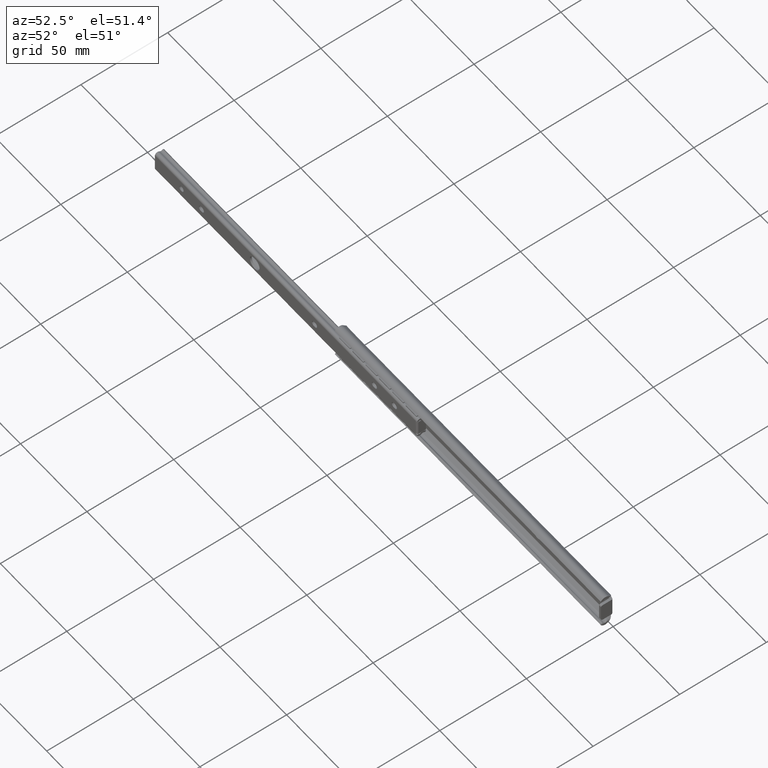
[diagram: clean part render]
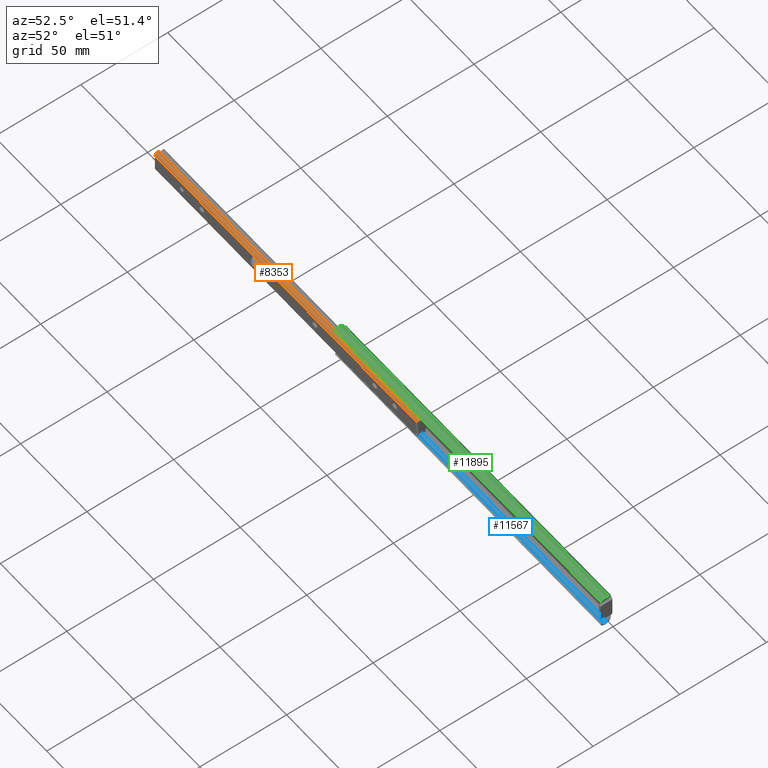
[diagram: same view with three faces highlighted in distinct colors, each labeled with its STEP entity id]
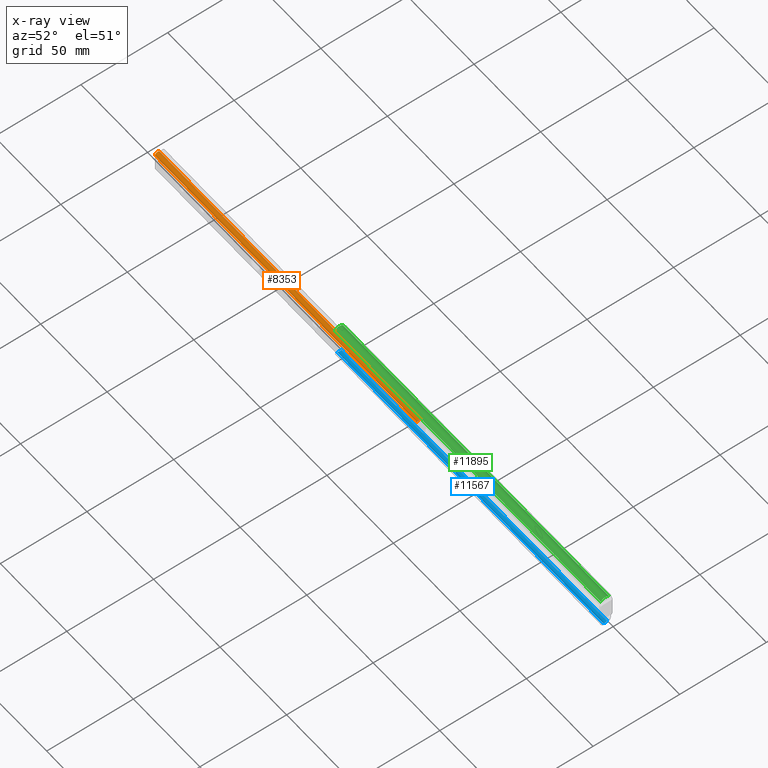
[diagram: x-ray of the same camera — body ghosted, the three highlighted faces saturated]
A machine part, auxiliary view with three faces highlighted in distinct colors.
The next image is the same camera in x-ray (body ghosted, the three faces saturated) — at least one of them is partly hidden behind the body in this view.
Their STEP definitions:

[orange] entity #8353 — the highlighted face is a freeform B-spline surface patch.
#7621=CARTESIAN_POINT('',(63.0,-8.000000000000119,4.641039999999910));
#7622=VERTEX_POINT('',#7621);
#7797=CARTESIAN_POINT('',(-134.0,-5.520770559995830,5.796694574426810));
#7798=VERTEX_POINT('',#7797);
#7931=CARTESIAN_POINT('',(-134.0,-8.000000000000091,4.641039999999900));
#7932=VERTEX_POINT('',#7931);
#7938=CARTESIAN_POINT('',(-134.0,-5.520770559995825,5.796694574426815));
#7939=CARTESIAN_POINT('',(-133.999999999999970,-6.257119220895800,6.414921351414743));
#7940=CARTESIAN_POINT('',(-134.0,-7.128559610447943,6.008712851194377));
#7941=CARTESIAN_POINT('',(-133.999999999999970,-8.000000000000080,5.602504350974015));
#7942=CARTESIAN_POINT('',(-134.0,-8.000000000000080,4.641039999999910));
#7950=(BOUNDED_CURVE()B_SPLINE_CURVE(2,(#7938,#7939,#7940,#7941,#7942),.UNSPECIFIED.,.F.,.U.)B_SPLINE_CURVE_WITH_KNOTS((3,2,3),(0.0,0.500000000000000,1.0),.UNSPECIFIED.)CURVE()GEOMETRIC_REPRESENTATION_ITEM()RATIONAL_B_SPLINE_CURVE((1.0,0.843353248524731,1.0,0.843353248524731,1.0))REPRESENTATION_ITEM(''));
#7951=EDGE_CURVE('',#7798,#7932,#7950,.T.);
#8262=CARTESIAN_POINT('',(63.0,-8.000000000000119,4.641039999999910));
#8263=CARTESIAN_POINT('',(-134.0,-8.000000000000091,4.641039999999900));
#8264=QUASI_UNIFORM_CURVE('',1,(#8262,#8263),.UNSPECIFIED.,.F.,.U.);
#8265=EDGE_CURVE('',#7622,#7932,#8264,.T.);
#8309=CARTESIAN_POINT('',(67.925000000000011,-5.471285293034917,5.753272268558233));
#8310=CARTESIAN_POINT('',(-139.048125000000000,-5.471285293034917,5.753272268558233));
#8311=CARTESIAN_POINT('',(67.925000000000026,-6.221495430884480,6.441105503496388));
#8312=CARTESIAN_POINT('',(-139.048125000000080,-6.221495430884480,6.441105503496388));
#8313=CARTESIAN_POINT('',(67.925000000000011,-7.140276965039488,6.003189641128381));
#8314=CARTESIAN_POINT('',(-139.048125000000000,-7.140276965039488,6.003189641128381));
#8315=CARTESIAN_POINT('',(67.925000000000026,-8.059058499194496,5.565273778760371));
#8316=CARTESIAN_POINT('',(-139.048125000000080,-8.059058499194496,5.565273778760371));
#8317=CARTESIAN_POINT('',(67.925000000000011,-7.997211602551442,4.549348205013273));
#8318=CARTESIAN_POINT('',(-139.048125000000000,-7.997211602551442,4.549348205013273));
#8326=(BOUNDED_SURFACE()B_SPLINE_SURFACE(1,2,((#8309,#8311,#8313,#8315,#8317),(#8310,#8312,#8314,#8316,#8318)),.UNSPECIFIED.,.F.,.F.,.U.)B_SPLINE_SURFACE_WITH_KNOTS((2,2),(3,2,3),(0.0,206.973125000000010),(0.0,1.0,2.0),.UNSPECIFIED.)GEOMETRIC_REPRESENTATION_ITEM()RATIONAL_B_SPLINE_SURFACE(((1.0,0.829037572555042,1.0,0.829037572555042,1.0),(1.0,0.829037572555042,1.0,0.829037572555042,1.0)))REPRESENTATION_ITEM('')SURFACE());
#8327=CARTESIAN_POINT('',(63.0,-5.520770942139200,5.796694532959880));
#8328=VERTEX_POINT('',#8327);
#8329=CARTESIAN_POINT('',(63.0,-5.520770942139200,5.796694532959880));
#8330=CARTESIAN_POINT('',(-134.0,-5.520770559995830,5.796694574426810));
#8331=QUASI_UNIFORM_CURVE('',1,(#8329,#8330),.UNSPECIFIED.,.F.,.U.);
#8332=EDGE_CURVE('',#8328,#7798,#8331,.T.);
#8333=ORIENTED_EDGE('',*,*,#8332,.T.);
#8334=ORIENTED_EDGE('',*,*,#7951,.T.);
#8335=ORIENTED_EDGE('',*,*,#8265,.F.);
#8336=CARTESIAN_POINT('',(63.0,-5.520770942139200,5.796694532959880));
#8337=CARTESIAN_POINT('',(63.0,-6.257119461994663,6.414921332530214));
#8338=CARTESIAN_POINT('',(63.0,-7.128559730997371,6.008712795002114));
#8339=CARTESIAN_POINT('',(63.0,-8.000000000000080,5.602504257474014));
#8340=CARTESIAN_POINT('',(63.0,-8.000000000000080,4.641039999999910));
#8348=(BOUNDED_CURVE()B_SPLINE_CURVE(2,(#8336,#8337,#8338,#8339,#8340),.UNSPECIFIED.,.F.,.U.)B_SPLINE_CURVE_WITH_KNOTS((3,2,3),(0.0,0.500000000000000,1.0),.UNSPECIFIED.)CURVE()GEOMETRIC_REPRESENTATION_ITEM()RATIONAL_B_SPLINE_CURVE((1.0,0.843353272206707,1.0,0.843353272206707,1.0))REPRESENTATION_ITEM(''));
#8349=EDGE_CURVE('',#8328,#7622,#8348,.T.);
#8350=ORIENTED_EDGE('',*,*,#8349,.F.);
#8351=EDGE_LOOP('',(#8333,#8334,#8335,#8350));
#8352=FACE_OUTER_BOUND('',#8351,.T.);
#8353=ADVANCED_FACE('',(#8352),#8326,.T.);

[blue] entity #11567 — the highlighted face is a freeform B-spline surface patch.
#10189=CARTESIAN_POINT('',(199.358451656231010,-5.943723999999921,-7.672665000000000));
#10190=VERTEX_POINT('',#10189);
#10198=CARTESIAN_POINT('',(199.707107000000010,-5.725739963287440,-8.021320000000090));
#10199=VERTEX_POINT('',#10198);
#10205=CARTESIAN_POINT('',(199.707107000000010,-5.725739963287440,-8.021320000000150));
#10206=CARTESIAN_POINT('',(199.547014627337490,-5.857500559323900,-7.861227785186356));
#10207=CARTESIAN_POINT('',(199.358451656231010,-5.943723999999921,-7.672665000000000));
#10215=(BOUNDED_CURVE()B_SPLINE_CURVE(2,(#10205,#10206,#10207),.UNSPECIFIED.,.F.,.U.)CURVE()GEOMETRIC_REPRESENTATION_ITEM()QUASI_UNIFORM_CURVE()RATIONAL_B_SPLINE_CURVE((1.0,0.991578288323373,1.0))REPRESENTATION_ITEM(''));
#10216=EDGE_CURVE('',#10199,#10190,#10215,.T.);
#10416=CARTESIAN_POINT('',(199.833379019755510,-3.419692415967285,-8.175724730600940));
#10417=VERTEX_POINT('',#10416);
#10431=CARTESIAN_POINT('',(199.707107000000010,-5.725739963287440,-8.021320000000090));
#10432=CARTESIAN_POINT('',(199.775674506414790,-5.669306510396432,-8.089887944041816));
#10433=CARTESIAN_POINT('',(199.826699468284400,-5.601531385747680,-8.160429519230638));
#10434=CARTESIAN_POINT('',(199.885126595610190,-5.481331032377405,-8.261453556430574));
#10435=CARTESIAN_POINT('',(199.901218637166410,-5.438784111969338,-8.293799683180898));
#10436=CARTESIAN_POINT('',(199.927990555303690,-5.349981310125294,-8.354355528528780));
#10437=CARTESIAN_POINT('',(199.938746699808690,-5.303555743444317,-8.382713120703015));
#10438=CARTESIAN_POINT('',(199.956404438875300,-5.206724443424927,-8.435077375763713));
#10439=CARTESIAN_POINT('',(199.963233494680110,-5.156632174866115,-8.458885160782941));
#10440=CARTESIAN_POINT('',(199.974026483085990,-5.054707689300225,-8.500953971687972));
#10441=CARTESIAN_POINT('',(199.978027269878400,-5.002655628045011,-8.519338064219930));
#10442=CARTESIAN_POINT('',(199.984210490262400,-4.896421611851914,-8.550704647582409));
#10443=CARTESIAN_POINT('',(199.986396299482410,-4.841951288597847,-8.563727869041452));
#10444=CARTESIAN_POINT('',(199.989542400728600,-4.732747871411131,-8.583826514069624));
#10445=CARTESIAN_POINT('',(199.991489674342890,-4.623146183085709,-8.598092107334022));
#10446=CARTESIAN_POINT('',(199.991838180424000,-4.512770832438867,-8.600915145932625));
#10447=CARTESIAN_POINT('',(199.991451262968100,-4.402004260934891,-8.597940823592740));
#10448=CARTESIAN_POINT('',(199.990882661664390,-4.346114890436679,-8.593497619682440));
#10449=CARTESIAN_POINT('',(199.987735950597600,-4.181126789263776,-8.571598305759220));
#10450=CARTESIAN_POINT('',(199.983900923823090,-4.074163140837850,-8.545783272493519));
#10451=CARTESIAN_POINT('',(199.973567018648790,-3.944337773919993,-8.499831297627962));
#10452=CARTESIAN_POINT('',(199.971209691112110,-3.918569035847722,-8.489950454938462));
#10453=CARTESIAN_POINT('',(199.965768477901690,-3.867436348903692,-8.468791536810063));
#10454=CARTESIAN_POINT('',(199.962672492106290,-3.841996775337387,-8.457474530403616));
#10455=CARTESIAN_POINT('',(199.952157468753710,-3.767170711696699,-8.421815803122273));
#10456=CARTESIAN_POINT('',(199.943514820427400,-3.719107199780098,-8.395718795168728));
#10457=CARTESIAN_POINT('',(199.921680446101500,-3.626678420919473,-8.339299615712786));
#10458=CARTESIAN_POINT('',(199.908495681846600,-3.582313180193320,-8.308974594612568));
#10459=CARTESIAN_POINT('',(199.875865585889810,-3.497444462471985,-8.244521853693962));
#10460=CARTESIAN_POINT('',(199.856429949096910,-3.457117290651071,-8.210481875992029));
#10461=CARTESIAN_POINT('',(199.833379019755510,-3.419692415967285,-8.175724730600940));
#10462=B_SPLINE_CURVE_WITH_KNOTS('',3,(#10431,#10432,#10433,#10434,#10435,#10436,#10437,#10438,#10439,#10440,#10441,#10442,#10443,#10444,#10445,#10446,#10447,#10448,#10449,#10450,#10451,#10452,#10453,#10454,#10455,#10456,#10457,#10458,#10459,#10460,#10461),.UNSPECIFIED.,.F.,.U.,(4,2,2,2,2,2,2,1,2,2,2,2,2,2,2,4),(0.0,0.124999999999992,0.187499999999993,0.249999999999994,0.312499999999995,0.374999999999996,0.437499999999998,0.499999999999999,0.562500000000000,0.625000000000001,0.750000000000004,0.781250000000005,0.812500000000006,0.875000000000004,0.937500000000002,0.999999780803425),.UNSPECIFIED.);
#10463=EDGE_CURVE('',#10199,#10417,#10462,.T.);
#10686=CARTESIAN_POINT('',(0.0,-5.943724000000290,-7.672665000000091));
#10687=VERTEX_POINT('',#10686);
#10693=CARTESIAN_POINT('',(0.0,-3.419692086351310,-8.175724424480430));
#10694=VERTEX_POINT('',#10693);
#10695=CARTESIAN_POINT('',(0.0,-5.943724000000290,-7.672665000000091));
#10696=CARTESIAN_POINT('',(0.0,-5.606225820222366,-8.410744024790620));
#10697=CARTESIAN_POINT('',(0.0,-4.810298240880543,-8.569378688821482));
#10698=CARTESIAN_POINT('',(0.0,-4.014370661538718,-8.728013352852344));
#10699=CARTESIAN_POINT('',(0.0,-3.419692086351312,-8.175724424480428));
#10707=(BOUNDED_CURVE()B_SPLINE_CURVE(2,(#10695,#10696,#10697,#10698,#10699),.UNSPECIFIED.,.F.,.U.)B_SPLINE_CURVE_WITH_KNOTS((3,2,3),(0.0,0.500000000000000,1.0),.UNSPECIFIED.)CURVE()GEOMETRIC_REPRESENTATION_ITEM()RATIONAL_B_SPLINE_CURVE((1.0,0.890390739637363,1.0,0.890390739637363,1.0))REPRESENTATION_ITEM(''));
#10708=EDGE_CURVE('',#10687,#10694,#10707,.T.);
#11532=CARTESIAN_POINT('',(199.833379019755510,-3.419692415967285,-8.175724730600940));
#11533=CARTESIAN_POINT('',(0.0,-3.419692086351310,-8.175724424480430));
#11534=QUASI_UNIFORM_CURVE('',1,(#11532,#11533),.UNSPECIFIED.,.F.,.U.);
#11535=EDGE_CURVE('',#10417,#10694,#11534,.T.);
#11542=CARTESIAN_POINT('',(204.991509385723700,-5.971145722488190,-7.609062245876170));
#11543=CARTESIAN_POINT('',(-5.124787734643093,-5.971145722488190,-7.609062245876170));
#11544=CARTESIAN_POINT('',(204.991509385723650,-5.052520421329091,-9.874428000601423));
#11545=CARTESIAN_POINT('',(-5.124787734643094,-5.052520421329091,-9.874428000601423));
#11546=CARTESIAN_POINT('',(204.991509385723700,-3.356644397438680,-8.113814767036136));
#11547=CARTESIAN_POINT('',(-5.124787734643093,-3.356644397438680,-8.113814767036136));
#11555=(BOUNDED_SURFACE()B_SPLINE_SURFACE(1,2,((#11542,#11544,#11546),(#11543,#11545,#11547)),.UNSPECIFIED.,.F.,.F.,.U.)B_SPLINE_SURFACE_WITH_KNOTS((2,2),(3,3),(0.0,210.116297120366800),(0.0,3.447768692704069),.UNSPECIFIED.)GEOMETRIC_REPRESENTATION_ITEM()RATIONAL_B_SPLINE_SURFACE(((1.0,0.544639035015028,1.0),(1.0,0.544639035015028,1.0)))REPRESENTATION_ITEM('')SURFACE());
#11556=ORIENTED_EDGE('',*,*,#10216,.F.);
#11557=ORIENTED_EDGE('',*,*,#10463,.T.);
#11558=ORIENTED_EDGE('',*,*,#11535,.T.);
#11559=ORIENTED_EDGE('',*,*,#10708,.F.);
#11560=CARTESIAN_POINT('',(199.358451656231010,-5.943723999999921,-7.672665000000000));
#11561=CARTESIAN_POINT('',(0.0,-5.943724000000290,-7.672665000000091));
#11562=QUASI_UNIFORM_CURVE('',1,(#11560,#11561),.UNSPECIFIED.,.F.,.U.);
#11563=EDGE_CURVE('',#10190,#10687,#11562,.T.);
#11564=ORIENTED_EDGE('',*,*,#11563,.F.);
#11565=EDGE_LOOP('',(#11556,#11557,#11558,#11559,#11564));
#11566=FACE_OUTER_BOUND('',#11565,.T.);
#11567=ADVANCED_FACE('',(#11566),#11555,.F.);

[green] entity #11895 — the highlighted face is a freeform B-spline surface patch.
#10024=CARTESIAN_POINT('',(200.0,-6.945557355833350,8.728427000000000));
#10025=VERTEX_POINT('',#10024);
#10031=CARTESIAN_POINT('',(199.978470017580490,-7.078071239486509,8.522037986978859));
#10032=VERTEX_POINT('',#10031);
#10033=CARTESIAN_POINT('',(200.0,-6.945557355833300,8.728427000000000));
#10034=CARTESIAN_POINT('',(200.0,-6.992917200193247,8.660929247621501));
#10035=CARTESIAN_POINT('',(199.993242560336910,-7.037063546604346,8.592073159680133));
#10036=CARTESIAN_POINT('',(199.978470017580490,-7.078071239486509,8.522037986978859));
#10037=QUASI_UNIFORM_CURVE('',3,(#10033,#10034,#10035,#10036),.UNSPECIFIED.,.F.,.U.);
#10038=EDGE_CURVE('',#10025,#10032,#10037,.T.);
#10520=CARTESIAN_POINT('',(0.0,-7.078071239486619,8.522037986978919));
#10521=VERTEX_POINT('',#10520);
#10527=CARTESIAN_POINT('',(0.0,-2.466980046918090,9.201560556579119));
#10528=VERTEX_POINT('',#10527);
#10529=CARTESIAN_POINT('',(0.0,-2.466980046918093,9.201560556579118));
#10530=CARTESIAN_POINT('',(0.0,-3.517366435705748,10.177073308125911));
#10531=CARTESIAN_POINT('',(0.0,-4.935554769061138,9.968079180659549));
#10532=CARTESIAN_POINT('',(0.0,-6.353743102416529,9.759085053193191));
#10533=CARTESIAN_POINT('',(0.0,-7.078071239486623,8.522037986978921));
#10541=(BOUNDED_CURVE()B_SPLINE_CURVE(2,(#10529,#10530,#10531,#10532,#10533),.UNSPECIFIED.,.F.,.U.)B_SPLINE_CURVE_WITH_KNOTS((3,2,3),(0.0,0.500000000000000,1.0),.UNSPECIFIED.)CURVE()GEOMETRIC_REPRESENTATION_ITEM()RATIONAL_B_SPLINE_CURVE((1.0,0.901581321800918,1.0,0.901581321800918,1.0))REPRESENTATION_ITEM(''));
#10542=EDGE_CURVE('',#10528,#10521,#10541,.T.);
#11784=CARTESIAN_POINT('',(200.0,-2.466980046918005,9.201560556579020));
#11785=VERTEX_POINT('',#11784);
#11786=CARTESIAN_POINT('',(200.0,-2.466980046918005,9.201560556579020));
#11787=CARTESIAN_POINT('',(199.999999999999970,-3.462608644127085,10.126218761168957));
#11788=CARTESIAN_POINT('',(200.0,-4.813864011567887,9.983467120693515));
#11789=CARTESIAN_POINT('',(199.999999999999970,-6.165119379008688,9.840715480218075));
#11790=CARTESIAN_POINT('',(200.0,-6.945557355833357,8.728427000000005));
#11798=(BOUNDED_CURVE()B_SPLINE_CURVE(2,(#11786,#11787,#11788,#11789,#11790),.UNSPECIFIED.,.F.,.U.)B_SPLINE_CURVE_WITH_KNOTS((3,2,3),(0.0,0.500000000000000,1.0),.UNSPECIFIED.)CURVE()GEOMETRIC_REPRESENTATION_ITEM()RATIONAL_B_SPLINE_CURVE((1.0,0.910272297567768,1.0,0.910272297567768,1.0))REPRESENTATION_ITEM(''));
#11799=EDGE_CURVE('',#11785,#10025,#11798,.T.);
#11862=CARTESIAN_POINT('',(200.0,-2.466980046918005,9.201560556579020));
#11863=CARTESIAN_POINT('',(0.0,-2.466980046918090,9.201560556579119));
#11864=QUASI_UNIFORM_CURVE('',1,(#11862,#11863),.UNSPECIFIED.,.F.,.U.);
#11865=EDGE_CURVE('',#11785,#10528,#11864,.T.);
#11870=CARTESIAN_POINT('',(205.0,-2.393046872449931,9.130495459935300));
#11871=CARTESIAN_POINT('',(-5.125000000000000,-2.393046872449931,9.130495459935300));
#11872=CARTESIAN_POINT('',(204.999999999999940,-5.358479045898496,12.080467124452287));
#11873=CARTESIAN_POINT('',(-5.125000000000001,-5.358479045898496,12.080467124452287));
#11874=CARTESIAN_POINT('',(205.000000000000030,-7.186944746307169,8.318441874775456));
#11875=CARTESIAN_POINT('',(-5.125000000000001,-7.186944746307169,8.318441874775456));
#11883=(BOUNDED_SURFACE()B_SPLINE_SURFACE(1,2,((#11870,#11872,#11874),(#11871,#11873,#11875)),.UNSPECIFIED.,.F.,.F.,.U.)B_SPLINE_SURFACE_WITH_KNOTS((2,2),(3,3),(0.0,210.125000000000110),(0.0,6.149971177053697),.UNSPECIFIED.)GEOMETRIC_REPRESENTATION_ITEM()RATIONAL_B_SPLINE_SURFACE(((1.0,0.581021946329816,0.999362504122286),(1.0,0.581021946329816,0.999362504122286)))REPRESENTATION_ITEM('')SURFACE());
#11884=ORIENTED_EDGE('',*,*,#10038,.F.);
#11885=ORIENTED_EDGE('',*,*,#11799,.F.);
#11886=ORIENTED_EDGE('',*,*,#11865,.T.);
#11887=ORIENTED_EDGE('',*,*,#10542,.T.);
#11888=CARTESIAN_POINT('',(199.978470017580490,-7.078071239486509,8.522037986978859));
#11889=CARTESIAN_POINT('',(0.0,-7.078071239486619,8.522037986978919));
#11890=QUASI_UNIFORM_CURVE('',1,(#11888,#11889),.UNSPECIFIED.,.F.,.U.);
#11891=EDGE_CURVE('',#10032,#10521,#11890,.T.);
#11892=ORIENTED_EDGE('',*,*,#11891,.F.);
#11893=EDGE_LOOP('',(#11884,#11885,#11886,#11887,#11892));
#11894=FACE_OUTER_BOUND('',#11893,.T.);
#11895=ADVANCED_FACE('',(#11894),#11883,.T.);